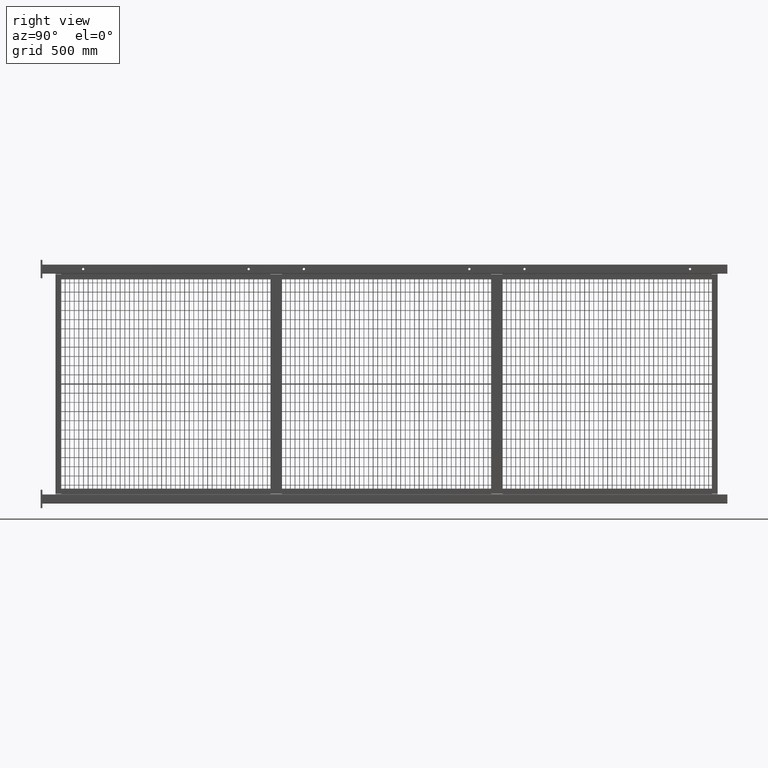
[diagram: clean part render]
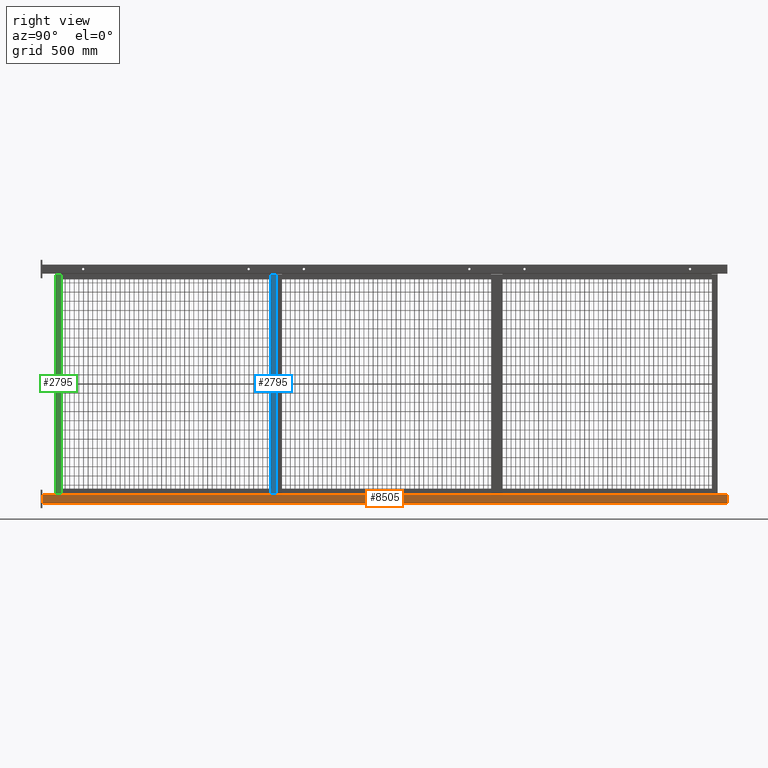
[diagram: same view with three faces highlighted in distinct colors, each labeled with its STEP entity id]
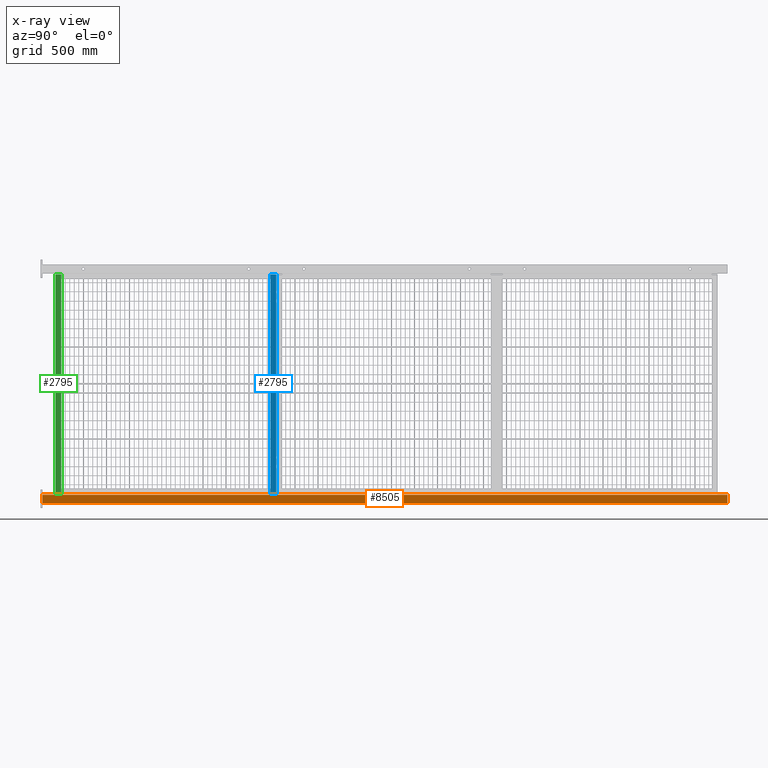
[diagram: x-ray of the same camera — body ghosted, the three highlighted faces saturated]
A machine part, right view with three faces highlighted in distinct colors.
The next image is the same camera in x-ray (body ghosted, the three faces saturated) — at least one of them is partly hidden behind the body in this view.
Their STEP definitions:

[orange] entity #8505 — the highlighted planar face has unit normal (1, -0, 0).
#8219=CARTESIAN_POINT('',(-0.875000000000000,-0.999999999999972,149.0));
#8220=VERTEX_POINT('',#8219);
#8238=CARTESIAN_POINT('',(-0.875000000000000,-0.999999999999972,0.0));
#8239=VERTEX_POINT('',#8238);
#8247=CARTESIAN_POINT('',(-0.875000000000000,-0.999999999999972,0.0));
#8248=DIRECTION('',(0.0,0.0,1.0));
#8249=VECTOR('',#8248,149.0);
#8250=LINE('',#8247,#8249);
#8251=EDGE_CURVE('',#8239,#8220,#8250,.T.);
#8456=CARTESIAN_POINT('',(0.875000000000000,-0.999999999999972,149.0));
#8457=VERTEX_POINT('',#8456);
#8465=CARTESIAN_POINT('',(0.875000000000000,-0.999999999999972,0.0));
#8466=VERTEX_POINT('',#8465);
#8467=CARTESIAN_POINT('',(0.875000000000000,-0.999999999999972,0.0));
#8468=DIRECTION('',(0.0,0.0,1.0));
#8469=VECTOR('',#8468,149.0);
#8470=LINE('',#8467,#8469);
#8471=EDGE_CURVE('',#8466,#8457,#8470,.T.);
#8484=CARTESIAN_POINT('',(0.875000000000000,-0.999999999999972,0.0));
#8485=DIRECTION('',(0.0,-1.0,0.0));
#8486=DIRECTION('',(0.0,0.0,-1.0));
#8487=AXIS2_PLACEMENT_3D('',#8484,#8485,#8486);
#8488=PLANE('',#8487);
#8489=CARTESIAN_POINT('',(0.875000000000000,-0.999999999999972,149.0));
#8490=DIRECTION('',(-1.0,0.0,0.0));
#8491=VECTOR('',#8490,1.750000000000000);
#8492=LINE('',#8489,#8491);
#8493=EDGE_CURVE('',#8457,#8220,#8492,.T.);
#8494=ORIENTED_EDGE('',*,*,#8493,.T.);
#8495=ORIENTED_EDGE('',*,*,#8251,.F.);
#8496=CARTESIAN_POINT('',(0.875000000000000,-0.999999999999972,0.0));
#8497=DIRECTION('',(-1.0,0.0,0.0));
#8498=VECTOR('',#8497,1.750000000000000);
#8499=LINE('',#8496,#8498);
#8500=EDGE_CURVE('',#8466,#8239,#8499,.T.);
#8501=ORIENTED_EDGE('',*,*,#8500,.F.);
#8502=ORIENTED_EDGE('',*,*,#8471,.T.);
#8503=EDGE_LOOP('',(#8494,#8495,#8501,#8502));
#8504=FACE_OUTER_BOUND('',#8503,.T.);
#8505=ADVANCED_FACE('',(#8504),#8488,.T.);

[blue] entity #2795 — the highlighted planar face has unit normal (1, 0, 0).
#2618=CARTESIAN_POINT('',(0.0,0.0,-23.812500000000000));
#2619=VERTEX_POINT('',#2618);
#2626=CARTESIAN_POINT('',(-1.250000000000000,0.0,-23.812500000000000));
#2627=VERTEX_POINT('',#2626);
#2628=CARTESIAN_POINT('',(-1.250000000000000,0.0,-23.812500000000000));
#2629=DIRECTION('',(1.0,0.0,0.0));
#2630=VECTOR('',#2629,1.250000000000000);
#2631=LINE('',#2628,#2630);
#2632=EDGE_CURVE('',#2627,#2619,#2631,.T.);
#2729=CARTESIAN_POINT('',(0.0,0.0,23.812500000000000));
#2730=VERTEX_POINT('',#2729);
#2737=CARTESIAN_POINT('',(0.0,0.0,23.812500000000000));
#2738=DIRECTION('',(0.0,0.0,-1.0));
#2739=VECTOR('',#2738,47.625000000000000);
#2740=LINE('',#2737,#2739);
#2741=EDGE_CURVE('',#2730,#2619,#2740,.T.);
#2772=CARTESIAN_POINT('',(0.0,0.0,0.0));
#2773=DIRECTION('',(0.0,-1.0,0.0));
#2774=DIRECTION('',(0.0,0.0,-1.0));
#2775=AXIS2_PLACEMENT_3D('',#2772,#2773,#2774);
#2776=PLANE('',#2775);
#2777=CARTESIAN_POINT('',(-1.250000000000000,0.0,23.812500000000000));
#2778=VERTEX_POINT('',#2777);
#2779=CARTESIAN_POINT('',(0.0,0.0,23.812500000000000));
#2780=DIRECTION('',(-1.0,0.0,0.0));
#2781=VECTOR('',#2780,1.250000000000000);
#2782=LINE('',#2779,#2781);
#2783=EDGE_CURVE('',#2730,#2778,#2782,.T.);
#2784=ORIENTED_EDGE('',*,*,#2783,.T.);
#2785=CARTESIAN_POINT('',(-1.250000000000000,0.0,23.812500000000000));
#2786=DIRECTION('',(0.0,0.0,-1.0));
#2787=VECTOR('',#2786,47.625000000000000);
#2788=LINE('',#2785,#2787);
#2789=EDGE_CURVE('',#2778,#2627,#2788,.T.);
#2790=ORIENTED_EDGE('',*,*,#2789,.T.);
#2791=ORIENTED_EDGE('',*,*,#2632,.T.);
#2792=ORIENTED_EDGE('',*,*,#2741,.F.);
#2793=EDGE_LOOP('',(#2784,#2790,#2791,#2792));
#2794=FACE_OUTER_BOUND('',#2793,.T.);
#2795=ADVANCED_FACE('',(#2794),#2776,.T.);

[green] entity #2795 — the highlighted planar face has unit normal (1, 0, 0).
#2618=CARTESIAN_POINT('',(0.0,0.0,-23.812500000000000));
#2619=VERTEX_POINT('',#2618);
#2626=CARTESIAN_POINT('',(-1.250000000000000,0.0,-23.812500000000000));
#2627=VERTEX_POINT('',#2626);
#2628=CARTESIAN_POINT('',(-1.250000000000000,0.0,-23.812500000000000));
#2629=DIRECTION('',(1.0,0.0,0.0));
#2630=VECTOR('',#2629,1.250000000000000);
#2631=LINE('',#2628,#2630);
#2632=EDGE_CURVE('',#2627,#2619,#2631,.T.);
#2729=CARTESIAN_POINT('',(0.0,0.0,23.812500000000000));
#2730=VERTEX_POINT('',#2729);
#2737=CARTESIAN_POINT('',(0.0,0.0,23.812500000000000));
#2738=DIRECTION('',(0.0,0.0,-1.0));
#2739=VECTOR('',#2738,47.625000000000000);
#2740=LINE('',#2737,#2739);
#2741=EDGE_CURVE('',#2730,#2619,#2740,.T.);
#2772=CARTESIAN_POINT('',(0.0,0.0,0.0));
#2773=DIRECTION('',(0.0,-1.0,0.0));
#2774=DIRECTION('',(0.0,0.0,-1.0));
#2775=AXIS2_PLACEMENT_3D('',#2772,#2773,#2774);
#2776=PLANE('',#2775);
#2777=CARTESIAN_POINT('',(-1.250000000000000,0.0,23.812500000000000));
#2778=VERTEX_POINT('',#2777);
#2779=CARTESIAN_POINT('',(0.0,0.0,23.812500000000000));
#2780=DIRECTION('',(-1.0,0.0,0.0));
#2781=VECTOR('',#2780,1.250000000000000);
#2782=LINE('',#2779,#2781);
#2783=EDGE_CURVE('',#2730,#2778,#2782,.T.);
#2784=ORIENTED_EDGE('',*,*,#2783,.T.);
#2785=CARTESIAN_POINT('',(-1.250000000000000,0.0,23.812500000000000));
#2786=DIRECTION('',(0.0,0.0,-1.0));
#2787=VECTOR('',#2786,47.625000000000000);
#2788=LINE('',#2785,#2787);
#2789=EDGE_CURVE('',#2778,#2627,#2788,.T.);
#2790=ORIENTED_EDGE('',*,*,#2789,.T.);
#2791=ORIENTED_EDGE('',*,*,#2632,.T.);
#2792=ORIENTED_EDGE('',*,*,#2741,.F.);
#2793=EDGE_LOOP('',(#2784,#2790,#2791,#2792));
#2794=FACE_OUTER_BOUND('',#2793,.T.);
#2795=ADVANCED_FACE('',(#2794),#2776,.T.);